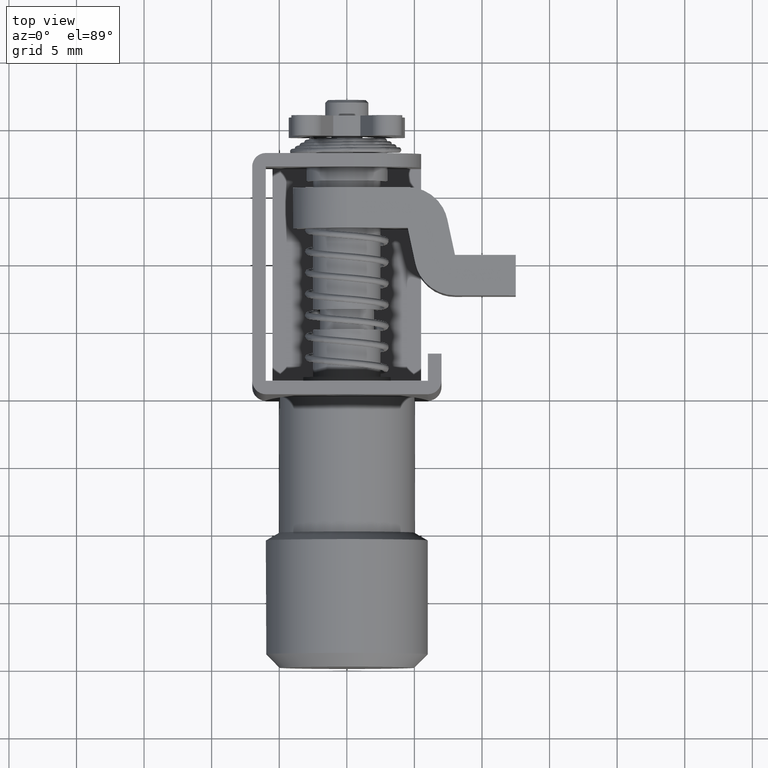
[diagram: clean part render]
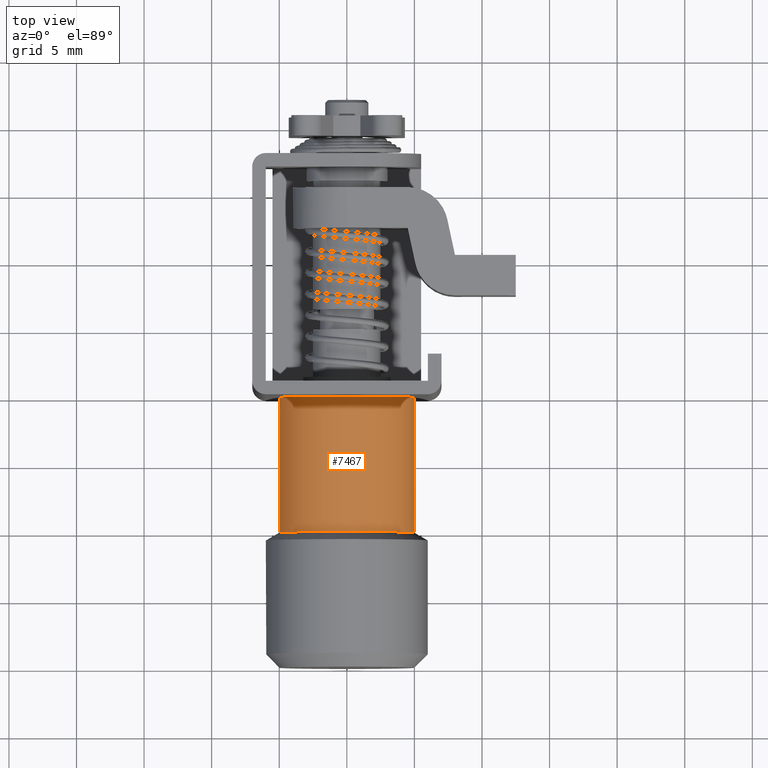
[diagram: same view with one face highlighted and labeled with its STEP entity id]
A machine part, top view. The second image highlights one B-rep face of the part: STEP entity #7467.
In plain terms, the highlighted face is a freeform B-spline surface patch.
Its self-contained STEP definition (entity closure, byte-faithful):
#7160=CARTESIAN_POINT('',(-9.999999997636891,-4.990674052097332,-0.305241649785775));
#7161=VERTEX_POINT('',#7160);
#7242=CARTESIAN_POINT('',(-9.999999999999998,4.965047631814917,0.590171173312523));
#7243=VERTEX_POINT('',#7242);
#7308=CARTESIAN_POINT('',(-10.0,0.0,5.0));
#7309=VERTEX_POINT('',#7308);
#7310=CARTESIAN_POINT('',(-9.999999997636891,-4.990674052097332,-0.305241649785775));
#7311=CARTESIAN_POINT('',(-10.000000000000002,-4.999999999999999,-0.152763291204979));
#7312=CARTESIAN_POINT('',(-10.0,-5.0,0.0));
#7313=CARTESIAN_POINT('',(-10.000000000000002,-5.000000000000001,5.000000000000001));
#7314=CARTESIAN_POINT('',(-10.0,0.0,5.0));
#7322=(BOUNDED_CURVE()B_SPLINE_CURVE(2,(#7310,#7311,#7312,#7313,#7314),.UNSPECIFIED.,.F.,.U.)B_SPLINE_CURVE_WITH_KNOTS((3,2,3),(0.739332998462860,0.750000000000000,1.0),.UNSPECIFIED.)CURVE()GEOMETRIC_REPRESENTATION_ITEM()RATIONAL_B_SPLINE_CURVE((0.976072119301479,0.987502830338796,1.0,0.707106781186548,1.0))REPRESENTATION_ITEM(''));
#7323=EDGE_CURVE('',#7161,#7309,#7322,.T.);
#7325=CARTESIAN_POINT('',(-10.0,0.0,5.0));
#7326=CARTESIAN_POINT('',(-10.0,4.440872629705078,5.0));
#7327=CARTESIAN_POINT('',(-9.999999999999998,4.965047631814917,0.590171173312523));
#7335=(BOUNDED_CURVE()B_SPLINE_CURVE(2,(#7325,#7326,#7327),.UNSPECIFIED.,.F.,.U.)B_SPLINE_CURVE_WITH_KNOTS((3,3),(0.0,0.229562473513688),.UNSPECIFIED.)CURVE()GEOMETRIC_REPRESENTATION_ITEM()RATIONAL_B_SPLINE_CURVE((1.0,0.731050832855192,0.956026754184052))REPRESENTATION_ITEM(''));
#7336=EDGE_CURVE('',#7309,#7243,#7335,.T.);
#7364=CARTESIAN_POINT('',(9.985390E-014,4.965047631814917,0.590171173312523));
#7365=VERTEX_POINT('',#7364);
#7366=CARTESIAN_POINT('',(9.985390E-014,4.965047631814917,0.590171173312523));
#7367=CARTESIAN_POINT('',(-9.999999999999998,4.965047631814917,0.590171173312523));
#7368=QUASI_UNIFORM_CURVE('',1,(#7366,#7367),.UNSPECIFIED.,.F.,.U.);
#7369=EDGE_CURVE('',#7365,#7243,#7368,.T.);
#7388=CARTESIAN_POINT('',(9.924006E-014,-4.990674118677113,-0.305240628295308));
#7389=VERTEX_POINT('',#7388);
#7403=CARTESIAN_POINT('',(9.924006E-014,-4.990674118677113,-0.305240628295308));
#7404=CARTESIAN_POINT('',(-9.999999997636891,-4.990674052097332,-0.305241649785775));
#7405=QUASI_UNIFORM_CURVE('',1,(#7403,#7404),.UNSPECIFIED.,.F.,.U.);
#7406=EDGE_CURVE('',#7389,#7161,#7405,.T.);
#7413=CARTESIAN_POINT('',(0.250000000000102,-4.990673992109334,-0.305242697674285));
#7414=CARTESIAN_POINT('',(0.250000000000102,-5.295916689783620,4.685431294435048));
#7415=CARTESIAN_POINT('',(0.250000000000102,-0.305242697674285,4.990673992109334));
#7416=CARTESIAN_POINT('',(0.250000000000102,4.407717454197504,5.278930983662638));
#7417=CARTESIAN_POINT('',(0.250000000000102,4.965047631818332,0.590171173283792));
#7418=CARTESIAN_POINT('',(-10.256250000000010,-4.990673992109334,-0.305242697674285));
#7419=CARTESIAN_POINT('',(-10.256250000000005,-5.295916689783620,4.685431294435048));
#7420=CARTESIAN_POINT('',(-10.256250000000010,-0.305242697674285,4.990673992109334));
#7421=CARTESIAN_POINT('',(-10.256250000000003,4.407717454197504,5.278930983662638));
#7422=CARTESIAN_POINT('',(-10.256250000000001,4.965047631818332,0.590171173283792));
#7430=(BOUNDED_SURFACE()B_SPLINE_SURFACE(2,1,((#7413,#7418),(#7414,#7419),(#7415,#7420),(#7416,#7421),(#7417,#7422)),.UNSPECIFIED.,.F.,.F.,.U.)B_SPLINE_SURFACE_WITH_KNOTS((3,2,3),(2,2),(0.0,8.284271247461899,16.237171645025320),(0.0,10.506250000000110),.UNSPECIFIED.)GEOMETRIC_REPRESENTATION_ITEM()RATIONAL_B_SPLINE_SURFACE(((1.0,1.0),(0.707106781186548,0.707106781186548),(1.0,1.0),(0.718822509939086,0.718822509939086),(0.977505800795127,0.977505800795127)))REPRESENTATION_ITEM('')SURFACE());
#7431=ORIENTED_EDGE('',*,*,#7336,.F.);
#7432=ORIENTED_EDGE('',*,*,#7323,.F.);
#7433=ORIENTED_EDGE('',*,*,#7406,.F.);
#7434=CARTESIAN_POINT('',(9.947598E-014,0.0,5.0));
#7435=VERTEX_POINT('',#7434);
#7436=CARTESIAN_POINT('',(9.924006E-014,-4.990674118677113,-0.305240628295308));
#7437=CARTESIAN_POINT('',(9.947598E-014,-5.0,-0.152762778902320));
#7438=CARTESIAN_POINT('',(9.947598E-014,-5.0,0.0));
#7439=CARTESIAN_POINT('',(9.947598E-014,-5.000000000000001,5.000000000000001));
#7440=CARTESIAN_POINT('',(9.947598E-014,0.0,5.0));
#7448=(BOUNDED_CURVE()B_SPLINE_CURVE(2,(#7436,#7437,#7438,#7439,#7440),.UNSPECIFIED.,.F.,.U.)B_SPLINE_CURVE_WITH_KNOTS((3,2,3),(0.739333033788360,0.750000000000000,1.0),.UNSPECIFIED.)CURVE()GEOMETRIC_REPRESENTATION_ITEM()RATIONAL_B_SPLINE_CURVE((0.976072195010788,0.987502871725194,1.0,0.707106781186548,1.0))REPRESENTATION_ITEM(''));
#7449=EDGE_CURVE('',#7389,#7435,#7448,.T.);
#7450=ORIENTED_EDGE('',*,*,#7449,.T.);
#7451=CARTESIAN_POINT('',(9.947598E-014,0.0,5.0));
#7452=CARTESIAN_POINT('',(9.947598E-014,4.440872629705078,5.0));
#7453=CARTESIAN_POINT('',(9.985390E-014,4.965047631814917,0.590171173312523));
#7461=(BOUNDED_CURVE()B_SPLINE_CURVE(2,(#7451,#7452,#7453),.UNSPECIFIED.,.F.,.U.)B_SPLINE_CURVE_WITH_KNOTS((3,3),(0.0,0.229562473513688),.UNSPECIFIED.)CURVE()GEOMETRIC_REPRESENTATION_ITEM()RATIONAL_B_SPLINE_CURVE((1.0,0.731050832855192,0.956026754184052))REPRESENTATION_ITEM(''));
#7462=EDGE_CURVE('',#7435,#7365,#7461,.T.);
#7463=ORIENTED_EDGE('',*,*,#7462,.T.);
#7464=ORIENTED_EDGE('',*,*,#7369,.T.);
#7465=EDGE_LOOP('',(#7431,#7432,#7433,#7450,#7463,#7464));
#7466=FACE_OUTER_BOUND('',#7465,.T.);
#7467=ADVANCED_FACE('',(#7466),#7430,.T.);